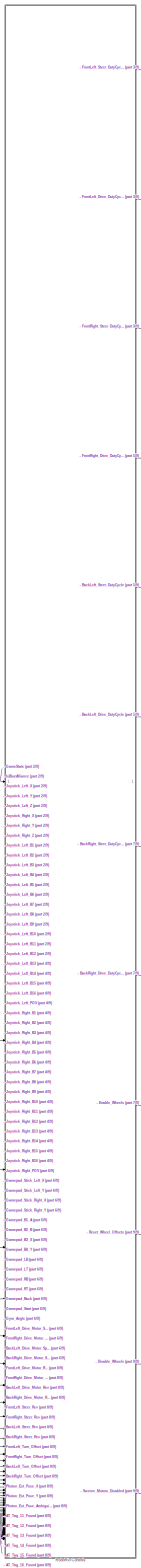
[diagram: root canvas - part 1/9, center side, full height]
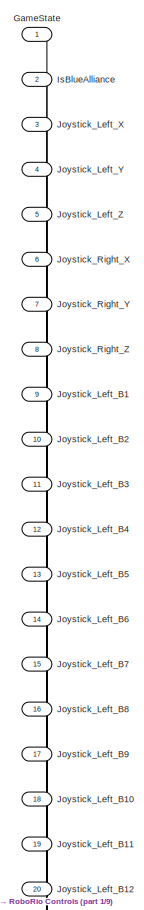
[diagram: root canvas - part 2/9, top left region]
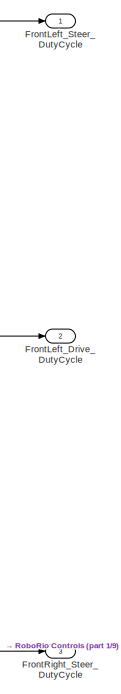
[diagram: root canvas - part 3/9, top right region]
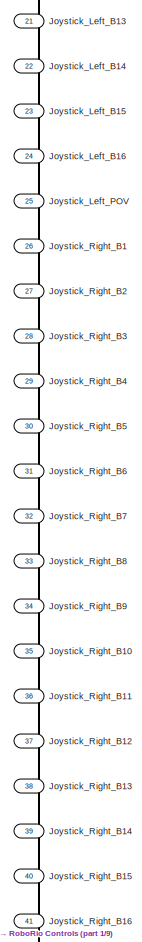
[diagram: root canvas - part 4/9, middle left region]
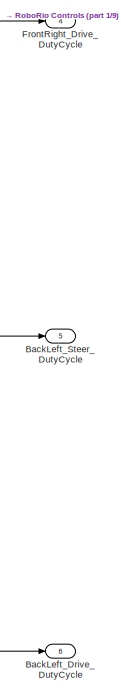
[diagram: root canvas - part 5/9, middle right region]
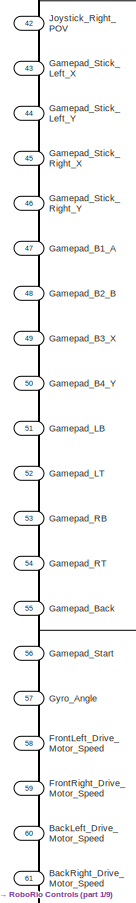
[diagram: root canvas - part 6/9, middle left region]
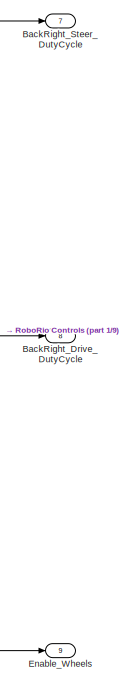
[diagram: root canvas - part 7/9, middle right region]
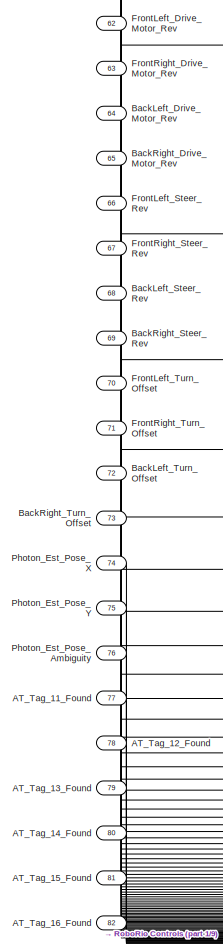
[diagram: root canvas - part 8/9, bottom left region]
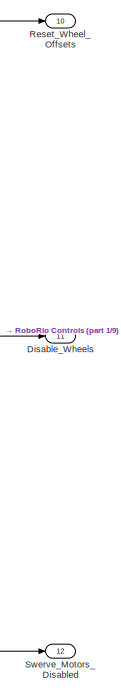
[diagram: root canvas - part 9/9, bottom right region]
MODEL slx_c87494710632
KIND model
CONFIG AbsTol = auto
CONFIG EnableMultiTasking = off
CONFIG FixedStep = t_sample
CONFIG MaxStep = auto
CONFIG MinStep = auto
CONFIG RelTol = 1e-3
CONFIG SampleTimeConstraint = Unconstrained
CONFIG SolverName = FixedStepDiscrete
CONFIG StartTime = 0.0
CONFIG StopTime = inf
BLOCK [Inport] AT_Tag_11_Found
  Port = 77
BLOCK [Inport] AT_Tag_12_Found
  Port = 78
BLOCK [Inport] AT_Tag_13_Found
  Port = 79
BLOCK [Inport] AT_Tag_14_Found
  Port = 80
BLOCK [Inport] AT_Tag_15_Found
  Port = 81
BLOCK [Inport] AT_Tag_16_Found
  Port = 82
BLOCK [Outport] BackLeft_Drive_DutyCycle
  Port = 6
BLOCK [Inport] BackLeft_Drive_Motor_Rev
  Port = 64
BLOCK [Inport] BackLeft_Drive_Motor_Speed
  Port = 60
BLOCK [Outport] BackLeft_Steer_DutyCycle
  Port = 5
BLOCK [Inport] BackLeft_Steer_Rev
  Port = 68
BLOCK [Inport] BackLeft_Turn_Offset
  Port = 72
BLOCK [Outport] BackRight_Drive_DutyCycle
  Port = 8
BLOCK [Inport] BackRight_Drive_Motor_Rev
  Port = 65
BLOCK [Inport] BackRight_Drive_Motor_Speed
  Port = 61
BLOCK [Outport] BackRight_Steer_DutyCycle
  Port = 7
BLOCK [Inport] BackRight_Steer_Rev
  Port = 69
BLOCK [Inport] BackRight_Turn_Offset
  Port = 73
BLOCK [Outport] Disable_Wheels
  Port = 11
BLOCK [Outport] Enable_Wheels
  Port = 9
BLOCK [Outport] FrontLeft_Drive_DutyCycle
  Port = 2
BLOCK [Inport] FrontLeft_Drive_Motor_Rev
  Port = 62
BLOCK [Inport] FrontLeft_Drive_Motor_Speed
  Port = 58
BLOCK [Outport] FrontLeft_Steer_DutyCycle
BLOCK [Inport] FrontLeft_Steer_Rev
  Port = 66
BLOCK [Inport] FrontLeft_Turn_Offset
  Port = 70
BLOCK [Outport] FrontRight_Drive_DutyCycle
  Port = 4
BLOCK [Inport] FrontRight_Drive_Motor_Rev
  Port = 63
BLOCK [Inport] FrontRight_Drive_Motor_Speed
  Port = 59
BLOCK [Outport] FrontRight_Steer_DutyCycle
  Port = 3
BLOCK [Inport] FrontRight_Steer_Rev
  Port = 67
BLOCK [Inport] FrontRight_Turn_Offset
  Port = 71
BLOCK [Inport] GameState
BLOCK [Inport] Gamepad_B1_A
  Port = 47
BLOCK [Inport] Gamepad_B2_B
  Port = 48
BLOCK [Inport] Gamepad_B3_X
  Port = 49
BLOCK [Inport] Gamepad_B4_Y
  Port = 50
BLOCK [Inport] Gamepad_Back
  Port = 55
BLOCK [Inport] Gamepad_LB
  Port = 51
BLOCK [Inport] Gamepad_LT
  Port = 52
BLOCK [Inport] Gamepad_RB
  Port = 53
BLOCK [Inport] Gamepad_RT
  Port = 54
BLOCK [Inport] Gamepad_Start
  Port = 56
BLOCK [Inport] Gamepad_Stick_Left_X
  Port = 43
BLOCK [Inport] Gamepad_Stick_Left_Y
  Port = 44
BLOCK [Inport] Gamepad_Stick_Right_X
  Port = 45
BLOCK [Inport] Gamepad_Stick_Right_Y
  Port = 46
BLOCK [Inport] Gyro_Angle
  Port = 57
BLOCK [Inport] IsBlueAlliance
  Port = 2
BLOCK [Inport] Joystick_Left_B1
  Port = 9
BLOCK [Inport] Joystick_Left_B10
  Port = 18
BLOCK [Inport] Joystick_Left_B11
  Port = 19
BLOCK [Inport] Joystick_Left_B12
  Port = 20
BLOCK [Inport] Joystick_Left_B13
  Port = 21
BLOCK [Inport] Joystick_Left_B14
  Port = 22
BLOCK [Inport] Joystick_Left_B15
  Port = 23
BLOCK [Inport] Joystick_Left_B16
  Port = 24
BLOCK [Inport] Joystick_Left_B2
  Port = 10
BLOCK [Inport] Joystick_Left_B3
  Port = 11
BLOCK [Inport] Joystick_Left_B4
  Port = 12
BLOCK [Inport] Joystick_Left_B5
  Port = 13
BLOCK [Inport] Joystick_Left_B6
  Port = 14
BLOCK [Inport] Joystick_Left_B7
  Port = 15
BLOCK [Inport] Joystick_Left_B8
  Port = 16
BLOCK [Inport] Joystick_Left_B9
  Port = 17
BLOCK [Inport] Joystick_Left_POV
  Port = 25
BLOCK [Inport] Joystick_Left_X
  Port = 3
BLOCK [Inport] Joystick_Left_Y
  Port = 4
BLOCK [Inport] Joystick_Left_Z
  Port = 5
BLOCK [Inport] Joystick_Right_B1
  Port = 26
BLOCK [Inport] Joystick_Right_B10
  Port = 35
BLOCK [Inport] Joystick_Right_B11
  Port = 36
BLOCK [Inport] Joystick_Right_B12
  Port = 37
BLOCK [Inport] Joystick_Right_B13
  Port = 38
BLOCK [Inport] Joystick_Right_B14
  Port = 39
BLOCK [Inport] Joystick_Right_B15
  Port = 40
BLOCK [Inport] Joystick_Right_B16
  Port = 41
BLOCK [Inport] Joystick_Right_B2
  Port = 27
BLOCK [Inport] Joystick_Right_B3
  Port = 28
BLOCK [Inport] Joystick_Right_B4
  Port = 29
BLOCK [Inport] Joystick_Right_B5
  Port = 30
BLOCK [Inport] Joystick_Right_B6
  Port = 31
BLOCK [Inport] Joystick_Right_B7
  Port = 32
BLOCK [Inport] Joystick_Right_B8
  Port = 33
BLOCK [Inport] Joystick_Right_B9
  Port = 34
BLOCK [Inport] Joystick_Right_POV
  Port = 42
BLOCK [Inport] Joystick_Right_X
  Port = 6
BLOCK [Inport] Joystick_Right_Y
  Port = 7
BLOCK [Inport] Joystick_Right_Z
  Port = 8
BLOCK [Inport] Photon_Est_Pose_Ambiguity
  Port = 76
BLOCK [Inport] Photon_Est_Pose_X
  Port = 74
BLOCK [Inport] Photon_Est_Pose_Y
  Port = 75
BLOCK [Outport] Reset_Wheel_Offsets
  Port = 10
BLOCK [SubSystem] RoboRio Controls
  ReferencedSubsystem = RoboRio_Controls_sub
BLOCK [Outport] Swerve_Motors_Disabled
  Port = 12
LINE AT_Tag_11_Found:1 -> RoboRio Controls:77
LINE AT_Tag_12_Found:1 -> RoboRio Controls:78
LINE AT_Tag_13_Found:1 -> RoboRio Controls:79
LINE AT_Tag_14_Found:1 -> RoboRio Controls:80
LINE AT_Tag_15_Found:1 -> RoboRio Controls:81
LINE AT_Tag_16_Found:1 -> RoboRio Controls:82
LINE BackLeft_Drive_Motor_Rev:1 -> RoboRio Controls:64
LINE BackLeft_Drive_Motor_Speed:1 -> RoboRio Controls:60
LINE BackLeft_Steer_Rev:1 -> RoboRio Controls:68
LINE BackLeft_Turn_Offset:1 -> RoboRio Controls:72
LINE BackRight_Drive_Motor_Rev:1 -> RoboRio Controls:65
LINE BackRight_Drive_Motor_Speed:1 -> RoboRio Controls:61
LINE BackRight_Steer_Rev:1 -> RoboRio Controls:69
LINE BackRight_Turn_Offset:1 -> RoboRio Controls:73
LINE FrontLeft_Drive_Motor_Rev:1 -> RoboRio Controls:62
LINE FrontLeft_Drive_Motor_Speed:1 -> RoboRio Controls:58
LINE FrontLeft_Steer_Rev:1 -> RoboRio Controls:66
LINE FrontLeft_Turn_Offset:1 -> RoboRio Controls:70
LINE FrontRight_Drive_Motor_Rev:1 -> RoboRio Controls:63
LINE FrontRight_Drive_Motor_Speed:1 -> RoboRio Controls:59
LINE FrontRight_Steer_Rev:1 -> RoboRio Controls:67
LINE FrontRight_Turn_Offset:1 -> RoboRio Controls:71
LINE GameState:1 -> RoboRio Controls:1
LINE Gamepad_B1_A:1 -> RoboRio Controls:47
LINE Gamepad_B2_B:1 -> RoboRio Controls:48
LINE Gamepad_B3_X:1 -> RoboRio Controls:49
LINE Gamepad_B4_Y:1 -> RoboRio Controls:50
LINE Gamepad_Back:1 -> RoboRio Controls:55
LINE Gamepad_LB:1 -> RoboRio Controls:51
LINE Gamepad_LT:1 -> RoboRio Controls:52
LINE Gamepad_RB:1 -> RoboRio Controls:53
LINE Gamepad_RT:1 -> RoboRio Controls:54
LINE Gamepad_Start:1 -> RoboRio Controls:56
LINE Gamepad_Stick_Left_X:1 -> RoboRio Controls:43
LINE Gamepad_Stick_Left_Y:1 -> RoboRio Controls:44
LINE Gamepad_Stick_Right_X:1 -> RoboRio Controls:45
LINE Gamepad_Stick_Right_Y:1 -> RoboRio Controls:46
LINE Gyro_Angle:1 -> RoboRio Controls:57
LINE IsBlueAlliance:1 -> RoboRio Controls:2
LINE Joystick_Left_B10:1 -> RoboRio Controls:18
LINE Joystick_Left_B11:1 -> RoboRio Controls:19
LINE Joystick_Left_B12:1 -> RoboRio Controls:20
LINE Joystick_Left_B13:1 -> RoboRio Controls:21
LINE Joystick_Left_B14:1 -> RoboRio Controls:22
LINE Joystick_Left_B15:1 -> RoboRio Controls:23
LINE Joystick_Left_B16:1 -> RoboRio Controls:24
LINE Joystick_Left_B1:1 -> RoboRio Controls:9
LINE Joystick_Left_B2:1 -> RoboRio Controls:10
LINE Joystick_Left_B3:1 -> RoboRio Controls:11
LINE Joystick_Left_B4:1 -> RoboRio Controls:12
LINE Joystick_Left_B5:1 -> RoboRio Controls:13
LINE Joystick_Left_B6:1 -> RoboRio Controls:14
LINE Joystick_Left_B7:1 -> RoboRio Controls:15
LINE Joystick_Left_B8:1 -> RoboRio Controls:16
LINE Joystick_Left_B9:1 -> RoboRio Controls:17
LINE Joystick_Left_POV:1 -> RoboRio Controls:25
LINE Joystick_Left_X:1 -> RoboRio Controls:3
LINE Joystick_Left_Y:1 -> RoboRio Controls:4
LINE Joystick_Left_Z:1 -> RoboRio Controls:5
LINE Joystick_Right_B10:1 -> RoboRio Controls:35
LINE Joystick_Right_B11:1 -> RoboRio Controls:36
LINE Joystick_Right_B12:1 -> RoboRio Controls:37
LINE Joystick_Right_B13:1 -> RoboRio Controls:38
LINE Joystick_Right_B14:1 -> RoboRio Controls:39
LINE Joystick_Right_B15:1 -> RoboRio Controls:40
LINE Joystick_Right_B16:1 -> RoboRio Controls:41
LINE Joystick_Right_B1:1 -> RoboRio Controls:26
LINE Joystick_Right_B2:1 -> RoboRio Controls:27
LINE Joystick_Right_B3:1 -> RoboRio Controls:28
LINE Joystick_Right_B4:1 -> RoboRio Controls:29
LINE Joystick_Right_B5:1 -> RoboRio Controls:30
LINE Joystick_Right_B6:1 -> RoboRio Controls:31
LINE Joystick_Right_B7:1 -> RoboRio Controls:32
LINE Joystick_Right_B8:1 -> RoboRio Controls:33
LINE Joystick_Right_B9:1 -> RoboRio Controls:34
LINE Joystick_Right_POV:1 -> RoboRio Controls:42
LINE Joystick_Right_X:1 -> RoboRio Controls:6
LINE Joystick_Right_Y:1 -> RoboRio Controls:7
LINE Joystick_Right_Z:1 -> RoboRio Controls:8
LINE Photon_Est_Pose_Ambiguity:1 -> RoboRio Controls:76
LINE Photon_Est_Pose_X:1 -> RoboRio Controls:74
LINE Photon_Est_Pose_Y:1 -> RoboRio Controls:75
LINE RoboRio Controls:1 -> FrontLeft_Steer_DutyCycle:1
LINE RoboRio Controls:10 -> Reset_Wheel_Offsets:1
LINE RoboRio Controls:11 -> Disable_Wheels:1
LINE RoboRio Controls:12 -> Swerve_Motors_Disabled:1
LINE RoboRio Controls:2 -> FrontLeft_Drive_DutyCycle:1
LINE RoboRio Controls:3 -> FrontRight_Steer_DutyCycle:1
LINE RoboRio Controls:4 -> FrontRight_Drive_DutyCycle:1
LINE RoboRio Controls:5 -> BackLeft_Steer_DutyCycle:1
LINE RoboRio Controls:6 -> BackLeft_Drive_DutyCycle:1
LINE RoboRio Controls:7 -> BackRight_Steer_DutyCycle:1
LINE RoboRio Controls:8 -> BackRight_Drive_DutyCycle:1
LINE RoboRio Controls:9 -> Enable_Wheels:1
